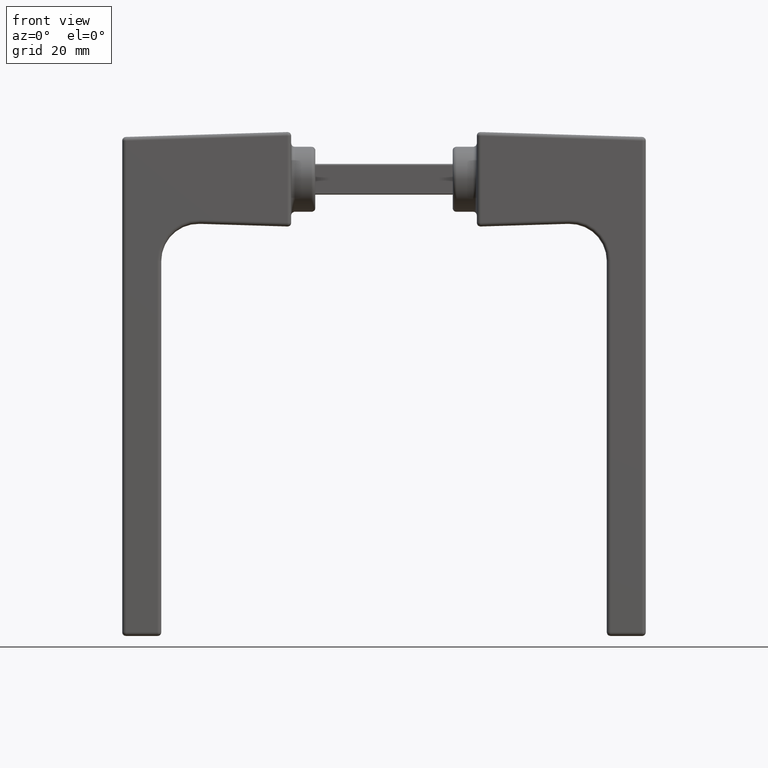
[diagram: clean part render]
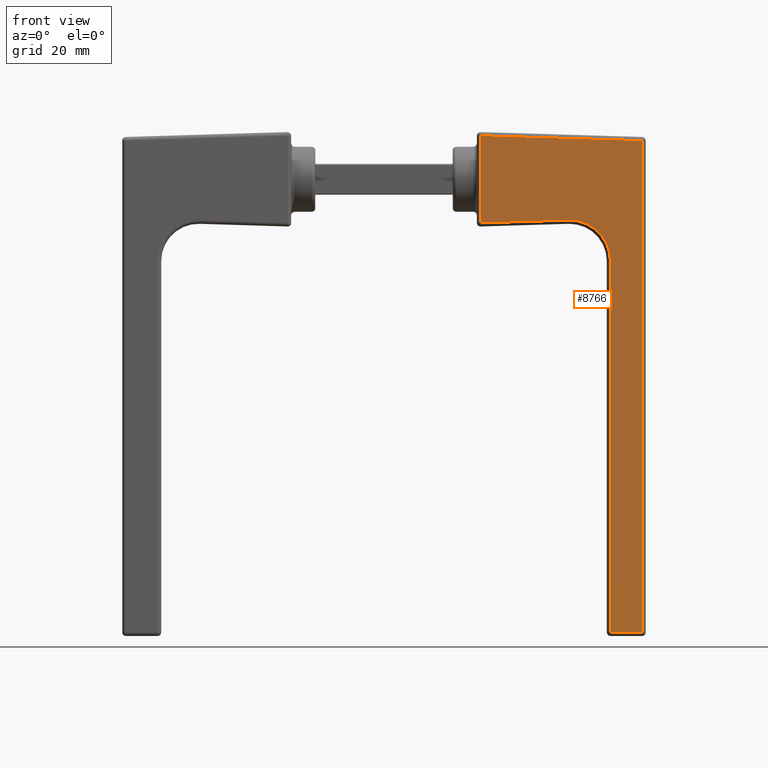
[diagram: same view with one face highlighted and labeled with its STEP entity id]
A machine part, front view. The second image highlights one B-rep face of the part: STEP entity #8766.
In plain terms, the highlighted planar face has unit normal (0, 1, -0).
Its self-contained STEP definition (entity closure, byte-faithful):
#53 = VECTOR ( 'NONE', #7636, 1000.000000000000000 ) ;
#519 = DIRECTION ( 'NONE',  ( 0.000000000000000000, -0.000000000000000000, -1.000000000000000000 ) ) ;
#900 = CARTESIAN_POINT ( 'NONE',  ( -44.50000000000000000, 11.25000000000000000, -21.99539188713786686 ) ) ;
#950 = DIRECTION ( 'NONE',  ( 6.869878546683472840E-17, 0.000000000000000000, -1.000000000000000000 ) ) ;
#1876 = ORIENTED_EDGE ( 'NONE', *, *, #14116, .T. ) ;
#2122 = DIRECTION ( 'NONE',  ( 0.000000000000000000, 0.000000000000000000, 1.000000000000000000 ) ) ;
#2371 = PLANE ( 'NONE',  #12266 ) ;
#2820 = EDGE_CURVE ( 'NONE', #14543, #9861, #3151, .T. ) ;
#2965 = DIRECTION ( 'NONE',  ( 0.000000000000000000, -1.000000000000000000, 0.000000000000000000 ) ) ;
#3151 = LINE ( 'NONE', #11827, #8796 ) ;
#3377 = CARTESIAN_POINT ( 'NONE',  ( -36.00000000000000711, 11.25000000000000000, -21.99539188713786686 ) ) ;
#3522 = CARTESIAN_POINT ( 'NONE',  ( -24.99999999999999645, 11.25000000000000000, -21.99539188713786686 ) ) ;
#3703 = ORIENTED_EDGE ( 'NONE', *, *, #15174, .T. ) ;
#3865 = CARTESIAN_POINT ( 'NONE',  ( -24.99999999999999645, 11.25000000000000000, -21.99539188713786686 ) ) ;
#3968 = LINE ( 'NONE', #900, #9438 ) ;
#4162 = CARTESIAN_POINT ( 'NONE',  ( -0.9999999999999940048, 11.25000000000000000, 11.71917024226190485 ) ) ;
#4540 = CARTESIAN_POINT ( 'NONE',  ( -36.00000000000000711, 11.25000000000000000, -21.99539188713786331 ) ) ;
#5808 = AXIS2_PLACEMENT_3D ( 'NONE', #3865, #6184, #14640 ) ;
#6184 = DIRECTION ( 'NONE',  ( -0.000000000000000000, -1.000000000000000000, 0.000000000000000000 ) ) ;
#6415 = ORIENTED_EDGE ( 'NONE', *, *, #6698, .T. ) ;
#6522 = CARTESIAN_POINT ( 'NONE',  ( -24.66609786273275162, 11.25000000000000000, -11.00046081128621367 ) ) ;
#6698 = EDGE_CURVE ( 'NONE', #11751, #15474, #15230, .T. ) ;
#6893 = CARTESIAN_POINT ( 'NONE',  ( -44.50000000000000000, 11.25000000000000000, 10.39813031295975776 ) ) ;
#7047 = VERTEX_POINT ( 'NONE', #4162 ) ;
#7180 = ORIENTED_EDGE ( 'NONE', *, *, #2820, .T. ) ;
#7636 = DIRECTION ( 'NONE',  ( 0.000000000000000000, 0.000000000000000000, -1.000000000000000000 ) ) ;
#8435 = DIRECTION ( 'NONE',  ( -0.9995391887137865528, 0.000000000000000000, 0.03035473975156778928 ) ) ;
#8519 = LINE ( 'NONE', #3377, #12869 ) ;
#8564 = CIRCLE ( 'NONE', #5808, 11.00000000000000355 ) ;
#8697 = LINE ( 'NONE', #9107, #10028 ) ;
#8766 = ADVANCED_FACE ( 'NONE', ( #9712 ), #2371, .F. ) ;
#8796 = VECTOR ( 'NONE', #11876, 1000.000000000000000 ) ;
#9107 = CARTESIAN_POINT ( 'NONE',  ( -26.00081132108978110, 11.25000000000000000, 10.95992725329388762 ) ) ;
#9438 = VECTOR ( 'NONE', #2122, 1000.000000000000000 ) ;
#9712 = FACE_OUTER_BOUND ( 'NONE', #15127, .T. ) ;
#9861 = VERTEX_POINT ( 'NONE', #10292 ) ;
#10028 = VECTOR ( 'NONE', #12873, 999.9999999999998863 ) ;
#10292 = CARTESIAN_POINT ( 'NONE',  ( -44.50000000000000000, 11.25000000000000000, -121.9999999999999858 ) ) ;
#10361 = ORIENTED_EDGE ( 'NONE', *, *, #14210, .T. ) ;
#10670 = VERTEX_POINT ( 'NONE', #6893 ) ;
#10924 = CARTESIAN_POINT ( 'NONE',  ( -24.66609786273275162, 11.25000000000000000, -11.00046081128621367 ) ) ;
#11026 = CARTESIAN_POINT ( 'NONE',  ( -0.9999999999999940048, 11.25000000000000000, -11.71917024226190307 ) ) ;
#11323 = EDGE_CURVE ( 'NONE', #15474, #15102, #8564, .T. ) ;
#11367 = CARTESIAN_POINT ( 'NONE',  ( -36.00000000000000000, 11.25000000000000000, -121.9999999999999716 ) ) ;
#11551 = ORIENTED_EDGE ( 'NONE', *, *, #11936, .T. ) ;
#11751 = VERTEX_POINT ( 'NONE', #11026 ) ;
#11760 = LINE ( 'NONE', #13597, #53 ) ;
#11827 = CARTESIAN_POINT ( 'NONE',  ( -24.99999999999986500, 11.25000000000000000, -121.9999999999999574 ) ) ;
#11876 = DIRECTION ( 'NONE',  ( -1.000000000000000000, 0.000000000000000000, -1.321694076934710008E-15 ) ) ;
#11936 = EDGE_CURVE ( 'NONE', #7047, #11751, #11760, .T. ) ;
#12123 = ORIENTED_EDGE ( 'NONE', *, *, #11323, .T. ) ;
#12266 = AXIS2_PLACEMENT_3D ( 'NONE', #3522, #2965, #519 ) ;
#12869 = VECTOR ( 'NONE', #950, 1000.000000000000000 ) ;
#12873 = DIRECTION ( 'NONE',  ( 0.9995391887137866638, 0.000000000000000000, 0.03035473975156748397 ) ) ;
#13597 = CARTESIAN_POINT ( 'NONE',  ( -0.9999999999999940048, 11.25000000000000000, -21.99539188713786686 ) ) ;
#13709 = VECTOR ( 'NONE', #8435, 1000.000000000000000 ) ;
#14116 = EDGE_CURVE ( 'NONE', #10670, #7047, #8697, .T. ) ;
#14210 = EDGE_CURVE ( 'NONE', #15102, #14543, #8519, .T. ) ;
#14543 = VERTEX_POINT ( 'NONE', #11367 ) ;
#14640 = DIRECTION ( 'NONE',  ( 0.000000000000000000, 0.000000000000000000, -1.000000000000000000 ) ) ;
#15102 = VERTEX_POINT ( 'NONE', #4540 ) ;
#15127 = EDGE_LOOP ( 'NONE', ( #10361, #7180, #3703, #1876, #11551, #6415, #12123 ) ) ;
#15174 = EDGE_CURVE ( 'NONE', #9861, #10670, #3968, .T. ) ;
#15230 = LINE ( 'NONE', #10924, #13709 ) ;
#15474 = VERTEX_POINT ( 'NONE', #6522 ) ;